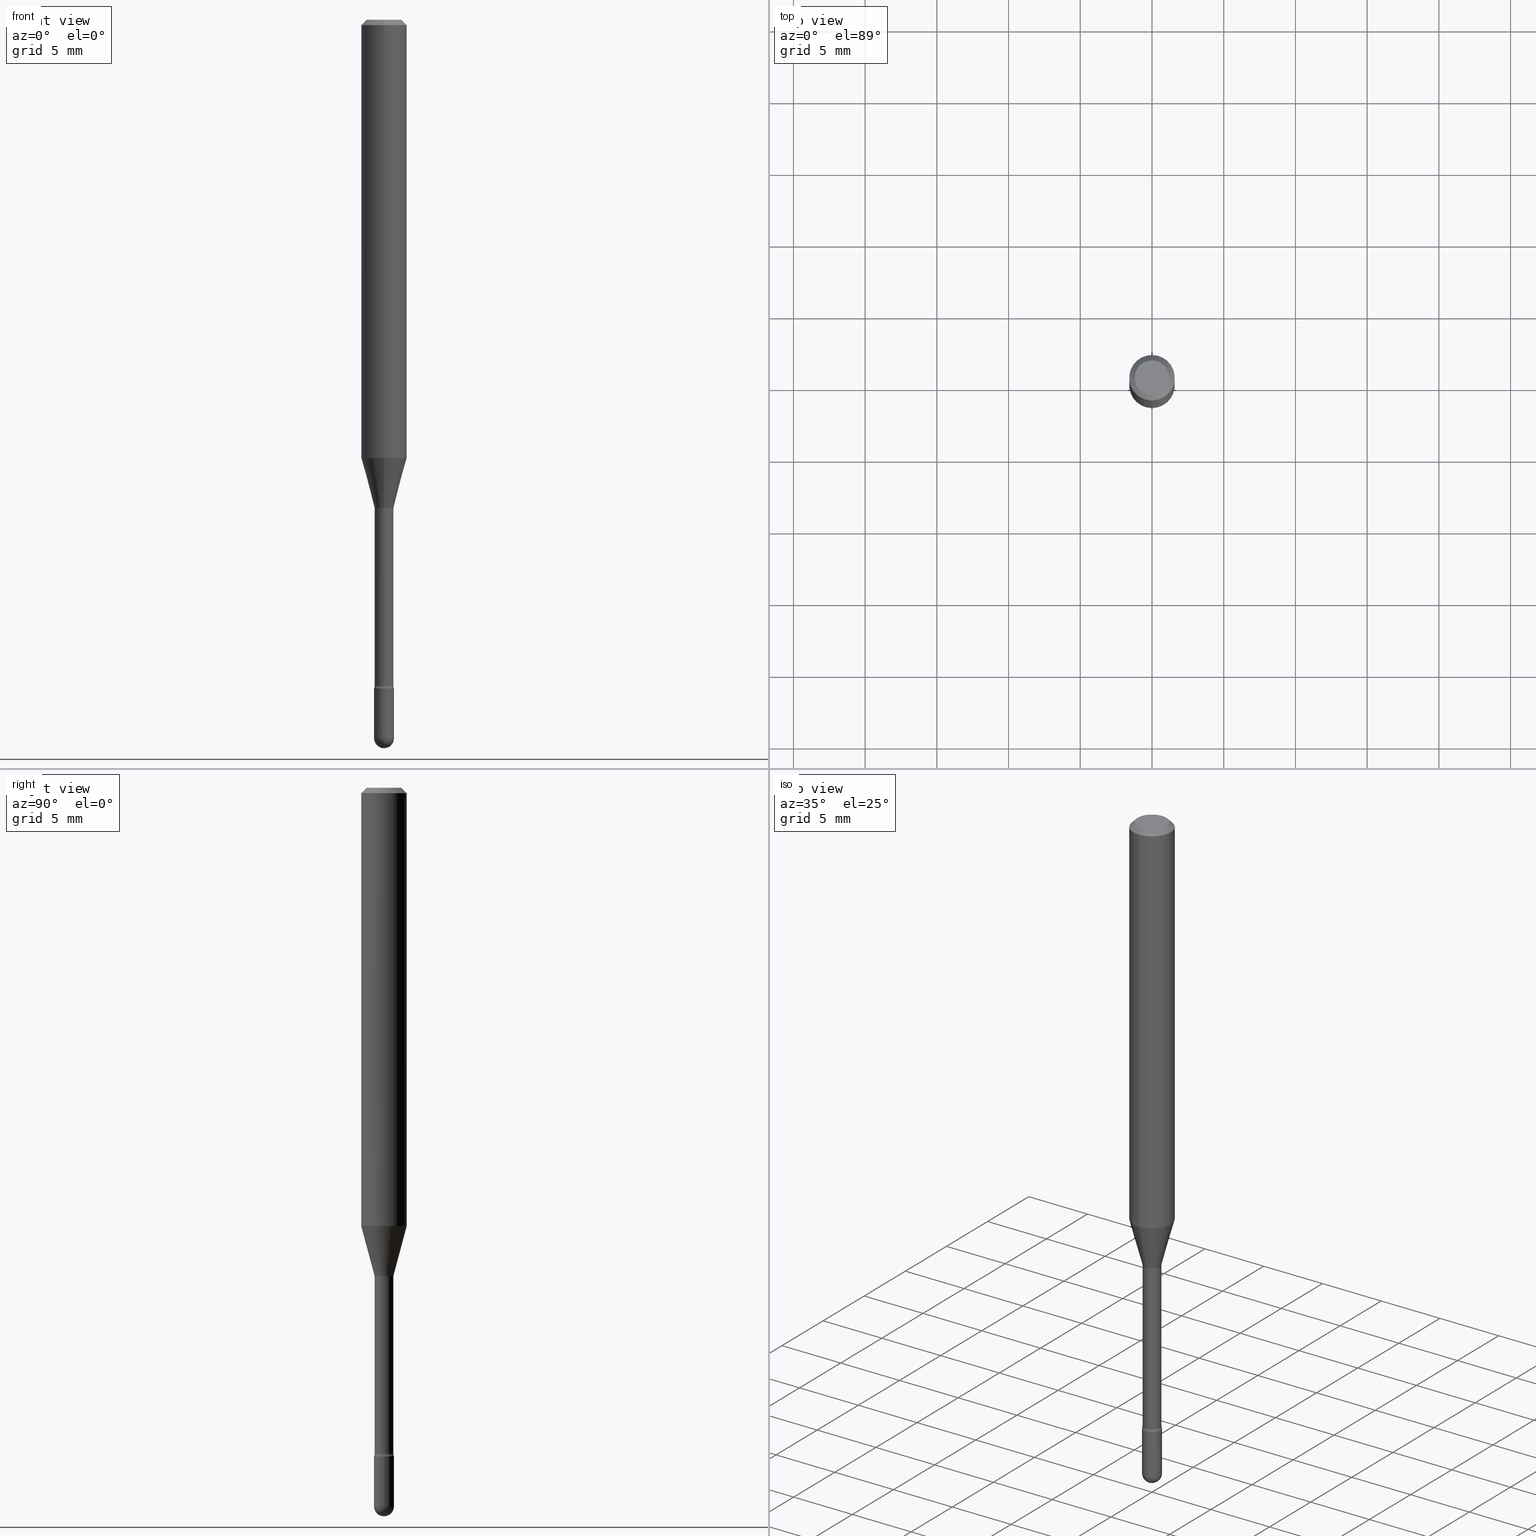
[diagram: canonical four-view strip — front | top / right | iso, engineering-drawing reading convention]
A machine part, canonical four-view strip (front | top / right | iso — engineering-drawing reading convention). The complete STEP part file that produces these views, byte-faithful:
ISO-10303-21;
HEADER;
FILE_DESCRIPTION (( 'STEP AP203' ),
    '1' );
FILE_NAME ('01622.STEP',
    '2024-04-09T20:10:21',
    ( '' ),
    ( '' ),
    'SwSTEP 2.0',
    'SolidWorks 2023',
    '' );
FILE_SCHEMA (( 'CONFIG_CONTROL_DESIGN' ));
ENDSEC;

DATA;
#1 = DIRECTION ( 'NONE',  ( -7.105427357601001070E-15, -1.000000000000000000, 0.000000000000000000 ) ) ;
#2 = AXIS2_PLACEMENT_3D ( 'NONE', #66, #29, #100 ) ;
#3 = AXIS2_PLACEMENT_3D ( 'NONE', #453, #230, #187 ) ;
#4 = SECURITY_CLASSIFICATION ( '', '', #273 ) ;
#5 = ORIENTED_EDGE ( 'NONE', *, *, #331, .T. ) ;
#6 = CARTESIAN_POINT ( 'NONE',  ( 3.281700167641022565E-29, -4.685562004235343704E-15, -1.341974787463811047 ) ) ;
#7 = VERTEX_POINT ( 'NONE', #69 ) ;
#8 = DIRECTION ( 'NONE',  ( -1.000000000000000000, 6.982962677686265922E-15, -4.883557194083112901E-29 ) ) ;
#9 = CARTESIAN_POINT ( 'NONE',  ( 0.000000000000000000, 0.000000000000000000, 0.000000000000000000 ) ) ;
#10 = FACE_OUTER_BOUND ( 'NONE', #328, .T. ) ;
#11 = DIRECTION ( 'NONE',  ( -2.445468806185136597E-29, 3.491481338843145583E-15, 1.000000000000000000 ) ) ;
#12 = AXIS2_PLACEMENT_3D ( 'NONE', #343, #539, #49 ) ;
#13 = FACE_OUTER_BOUND ( 'NONE', #530, .T. ) ;
#14 = CARTESIAN_POINT ( 'NONE',  ( -1.840786654676037546E-16, -0.02636111260566864622, -1.338092501787272903 ) ) ;
#15 = CARTESIAN_POINT ( 'NONE',  ( 0.000000000000000000, 0.000000000000000000, 0.000000000000000000 ) ) ;
#16 = CARTESIAN_POINT ( 'NONE',  ( 4.440892098500918040E-16, 0.06249999999999577421, -1.203220337902601189 ) ) ;
#17 = DIRECTION ( 'NONE',  ( 1.839019923739600315E-15, 0.2588190451025249583, 0.9659258262890670910 ) ) ;
#18 = ADVANCED_FACE ( 'NONE', ( #84 ), #437, .T. ) ;
#19 = CC_DESIGN_PERSON_AND_ORGANIZATION_ASSIGNMENT ( #317, #556, ( #4 ) ) ;
#20 = DIRECTION ( 'NONE',  ( -2.445468806185136597E-29, 3.491481338843145583E-15, 1.000000000000000000 ) ) ;
#21 = CARTESIAN_POINT ( 'NONE',  ( 2.023242295804794525E-45, -2.889338752406157076E-31, -8.274412692094914940E-17 ) ) ;
#22 = CARTESIAN_POINT ( 'NONE',  ( 3.272206324929117357E-29, -4.672006838798926672E-15, -1.338092501787272903 ) ) ;
#23 = PERSON_AND_ORGANIZATION ( #392, #327 ) ;
#24 = DIRECTION ( 'NONE',  ( -2.445426097641585314E-29, 3.491542499908330296E-15, 1.000000000000000000 ) ) ;
#25 = FACE_OUTER_BOUND ( 'NONE', #294, .T. ) ;
#26 = VERTEX_POINT ( 'NONE', #382 ) ;
#27 = CIRCLE ( 'NONE', #397, 0.02749999999999995504 ) ;
#28 = AXIS2_PLACEMENT_3D ( 'NONE', #161, #501, #63 ) ;
#29 = DIRECTION ( 'NONE',  ( -2.445426097641585314E-29, 3.491542499908330296E-15, 1.000000000000000000 ) ) ;
#30 = DATE_TIME_ROLE ( 'creation_date' ) ;
#31 = ADVANCED_FACE ( 'NONE', ( #299 ), #483, .T. ) ;
#32 = APPROVAL_STATUS ( 'not_yet_approved' ) ;
#33 = DIRECTION ( 'NONE',  ( -2.445426097641585314E-29, 3.491542499908330296E-15, 1.000000000000000000 ) ) ;
#34 = COORDINATED_UNIVERSAL_TIME_OFFSET ( 5, 0, .BEHIND. ) ;
#35 = VERTEX_POINT ( 'NONE', #227 ) ;
#36 = AXIS2_PLACEMENT_3D ( 'NONE', #125, #379, #288 ) ;
#37 = AXIS2_PLACEMENT_3D ( 'NONE', #527, #218, #216 ) ;
#38 = FACE_OUTER_BOUND ( 'NONE', #431, .T. ) ;
#39 = CC_DESIGN_DATE_AND_TIME_ASSIGNMENT ( #278, #30, ( #418 ) ) ;
#40 = CARTESIAN_POINT ( 'NONE',  ( 4.364351673553919652E-16, 0.06249999999999995143, -0.01500000000000030129 ) ) ;
#41 = DIRECTION ( 'NONE',  ( -2.445426097641585595E-29, 3.491542499908329902E-15, 1.000000000000000000 ) ) ;
#42 = ORIENTED_EDGE ( 'NONE', *, *, #219, .T. ) ;
#43 = CONICAL_SURFACE ( 'NONE', #482, 0.02636111260566397288, 0.2617993877991502960 ) ;
#44 = ORIENTED_EDGE ( 'NONE', *, *, #523, .F. ) ;
#45 = VERTEX_POINT ( 'NONE', #402 ) ;
#46 = VERTEX_POINT ( 'NONE', #16 ) ;
#47 = EDGE_LOOP ( 'NONE', ( #550, #430, #381, #425 ) ) ;
#48 = ORIENTED_EDGE ( 'NONE', *, *, #52, .F. ) ;
#49 = DIRECTION ( 'NONE',  ( -6.982962677686265922E-15, -1.000000000000000000, 4.370956789862821150E-15 ) ) ;
#50 = CIRCLE ( 'NONE', #420, 0.01499999999999996822 ) ;
#51 =( GEOMETRIC_REPRESENTATION_CONTEXT ( 3 ) GLOBAL_UNCERTAINTY_ASSIGNED_CONTEXT ( ( #115 ) ) GLOBAL_UNIT_ASSIGNED_CONTEXT ( ( #532, #145, #449 ) ) REPRESENTATION_CONTEXT ( 'NONE', 'WORKASPACE' ) );
#52 = EDGE_CURVE ( 'NONE', #215, #85, #513, .T. ) ;
#53 = FACE_OUTER_BOUND ( 'NONE', #346, .T. ) ;
#54 = DIRECTION ( 'NONE',  ( -2.445426097641585314E-29, 3.491542499908330296E-15, 1.000000000000000000 ) ) ;
#55 = ORIENTED_EDGE ( 'NONE', *, *, #94, .T. ) ;
#56 = DIRECTION ( 'NONE',  ( -6.982962677686265922E-15, -1.000000000000000000, 0.000000000000000000 ) ) ;
#57 = ADVANCED_FACE ( 'NONE', ( #315 ), #552, .F. ) ;
#58 = CIRCLE ( 'NONE', #371, 0.02750000000000000014 ) ;
#59 = EDGE_CURVE ( 'NONE', #7, #400, #143, .T. ) ;
#60 = DIRECTION ( 'NONE',  ( -2.445426097641585314E-29, 3.491542499908330296E-15, 1.000000000000000000 ) ) ;
#61 = DIRECTION ( 'NONE',  ( 6.982962677686265922E-15, 1.000000000000000000, 0.000000000000000000 ) ) ;
#62 = CARTESIAN_POINT ( 'NONE',  ( -4.364351673553623336E-16, -0.06250000000000421885, -1.203220337902600745 ) ) ;
#63 = DIRECTION ( 'NONE',  ( 1.000000000000000000, 0.000000000000000000, 0.000000000000000000 ) ) ;
#64 = LINE ( 'NONE', #205, #95 ) ;
#65 = ORIENTED_EDGE ( 'NONE', *, *, #331, .F. ) ;
#66 = CARTESIAN_POINT ( 'NONE',  ( 3.272206324929117357E-29, -4.672006838798926672E-15, -1.338092501787272903 ) ) ;
#67 = ORIENTED_EDGE ( 'NONE', *, *, #373, .F. ) ;
#68 = PERSON_AND_ORGANIZATION ( #392, #327 ) ;
#69 = CARTESIAN_POINT ( 'NONE',  ( -4.364351673553912750E-16, -0.06250000000000005551, -0.01499999999999986587 ) ) ;
#70 = AXIS2_PLACEMENT_3D ( 'NONE', #479, #92, #150 ) ;
#71 = ADVANCED_BREP_SHAPE_REPRESENTATION ( '01622', ( #146, #139, #28 ), #51 ) ;
#72 = APPLICATION_CONTEXT ( 'configuration controlled 3d designs of mechanical parts and assemblies' ) ;
#73 = CALENDAR_DATE ( 2024, 9, 4 ) ;
#74 = CARTESIAN_POINT ( 'NONE',  ( 4.487356889172309178E-29, -6.406980487331785808E-15, -1.834999999999999964 ) ) ;
#75 = APPLICATION_PROTOCOL_DEFINITION ( 'international standard', 'config_control_design', 1994, #72 ) ;
#76 = ORIENTED_EDGE ( 'NONE', *, *, #320, .F. ) ;
#77 = CALENDAR_DATE ( 2024, 9, 4 ) ;
#78 = DIRECTION ( 'NONE',  ( 4.937700262164548042E-15, 0.7071067811865451302, -0.7071067811865499042 ) ) ;
#79 = ORIENTED_EDGE ( 'NONE', *, *, #509, .F. ) ;
#80 = EDGE_CURVE ( 'NONE', #217, #469, #207, .T. ) ;
#81 = EDGE_CURVE ( 'NONE', #558, #35, #492, .T. ) ;
#82 = AXIS2_PLACEMENT_3D ( 'NONE', #83, #168, #559 ) ;
#83 = CARTESIAN_POINT ( 'NONE',  ( 4.823687220200181444E-29, -6.886946940868103736E-15, -1.972499999999999698 ) ) ;
#84 = FACE_OUTER_BOUND ( 'NONE', #476, .T. ) ;
#85 = VERTEX_POINT ( 'NONE', #405 ) ;
#86 = ORIENTED_EDGE ( 'NONE', *, *, #373, .T. ) ;
#87 = CIRCLE ( 'NONE', #473, 0.02750000000000000014 ) ;
#88 = CARTESIAN_POINT ( 'NONE',  ( -0.02750000000000000014, -6.451508346488609804E-15, -1.972499999999999698 ) ) ;
#89 = VERTEX_POINT ( 'NONE', #108 ) ;
#90 = ORIENTED_EDGE ( 'NONE', *, *, #475, .F. ) ;
#91 = PLANE ( 'NONE',  #171 ) ;
#92 = DIRECTION ( 'NONE',  ( -1.000000000000000000, 6.982962677686265922E-15, -4.883557194083112340E-29 ) ) ;
#93 = EDGE_LOOP ( 'NONE', ( #564, #428, #109, #276 ) ) ;
#94 = EDGE_CURVE ( 'NONE', #469, #217, #554, .T. ) ;
#95 = VECTOR ( 'NONE', #515, 39.37007874015748143 ) ;
#96 = LOCAL_TIME ( 16, 10, 21.00000000000000000, #111 ) ;
#97 = FACE_OUTER_BOUND ( 'NONE', #285, .T. ) ;
#98 = CARTESIAN_POINT ( 'NONE',  ( 0.02750000000000000014, -6.598899730413544603E-15, -1.834999999999999964 ) ) ;
#99 = ORIENTED_EDGE ( 'NONE', *, *, #308, .F. ) ;
#100 = DIRECTION ( 'NONE',  ( -6.982962677686265922E-15, -1.000000000000000000, 0.000000000000000000 ) ) ;
#101 = ADVANCED_FACE ( 'NONE', ( #239 ), #340, .F. ) ;
#102 = CC_DESIGN_DATE_AND_TIME_ASSIGNMENT ( #280, #459, ( #4 ) ) ;
#103 = FACE_OUTER_BOUND ( 'NONE', #460, .T. ) ;
#104 = CARTESIAN_POINT ( 'NONE',  ( -4.364351673553916201E-16, -0.06250000000000000000, 6.962948051355166821E-16 ) ) ;
#105 = AXIS2_PLACEMENT_3D ( 'NONE', #451, #231, #228 ) ;
#106 = DIRECTION ( 'NONE',  ( 7.105427357601001859E-15, 1.000000000000000000, 0.000000000000000000 ) ) ;
#107 = PERSON_AND_ORGANIZATION_ROLE ( 'creator' ) ;
#108 = CARTESIAN_POINT ( 'NONE',  ( -0.02750000000000000014, -6.451508346488609804E-15, -1.834999999999999964 ) ) ;
#109 = ORIENTED_EDGE ( 'NONE', *, *, #59, .F. ) ;
#110 = DIRECTION ( 'NONE',  ( -6.982962677686265922E-15, -1.000000000000000000, 3.491542499908330296E-15 ) ) ;
#111 = COORDINATED_UNIVERSAL_TIME_OFFSET ( 5, 0, .BEHIND. ) ;
#112 = ORIENTED_EDGE ( 'NONE', *, *, #521, .T. ) ;
#113 = CALENDAR_DATE ( 2024, 9, 4 ) ;
#114 = CARTESIAN_POINT ( 'NONE',  ( 4.470709700753047924E-29, -6.382988591833449480E-15, -1.828160592130893436 ) ) ;
#115 = UNCERTAINTY_MEASURE_WITH_UNIT (LENGTH_MEASURE( 1.000000000000000082E-05 ), #532, 'distance_accuracy_value', 'NONE');
#116 = VECTOR ( 'NONE', #198, 39.37007874015748143 ) ;
#117 = CIRCLE ( 'NONE', #440, 0.02750000000000000014 ) ;
#118 = PERSON_AND_ORGANIZATION_ROLE ( 'design_owner' ) ;
#119 = CARTESIAN_POINT ( 'NONE',  ( 3.668139146462398203E-31, -5.237313749862524657E-17, -0.01500000000000008271 ) ) ;
#120 = EDGE_LOOP ( 'NONE', ( #330, #90, #344, #173 ) ) ;
#121 = ADVANCED_FACE ( 'NONE', ( #414 ), #43, .T. ) ;
#122 = EDGE_CURVE ( 'NONE', #251, #89, #448, .T. ) ;
#123 = ORIENTED_EDGE ( 'NONE', *, *, #81, .F. ) ;
#124 = CARTESIAN_POINT ( 'NONE',  ( 0.02750000000000000014, -6.838939072459010416E-15, -1.972499999999999698 ) ) ;
#125 = CARTESIAN_POINT ( 'NONE',  ( 3.668139146462398203E-31, -5.237313749862524657E-17, -0.01500000000000008271 ) ) ;
#126 = AXIS2_PLACEMENT_3D ( 'NONE', #260, #443, #220 ) ;
#127 = VECTOR ( 'NONE', #200, 39.37007874015748143 ) ;
#128 = LOCAL_TIME ( 16, 10, 21.00000000000000000, #162 ) ;
#129 = PRODUCT_RELATED_PRODUCT_CATEGORY ( 'detail', '', ( #377 ) ) ;
#130 = ORIENTED_EDGE ( 'NONE', *, *, #433, .F. ) ;
#131 = DIRECTION ( 'NONE',  ( -2.445426097641585314E-29, 3.491542499908330296E-15, 1.000000000000000000 ) ) ;
#132 = CARTESIAN_POINT ( 'NONE',  ( -1.840786654676037546E-16, -0.02636111260566864622, -1.338092501787272903 ) ) ;
#133 = AXIS2_PLACEMENT_3D ( 'NONE', #547, #155, #1 ) ;
#134 = ORIENTED_EDGE ( 'NONE', *, *, #433, .T. ) ;
#135 = VERTEX_POINT ( 'NONE', #457 ) ;
#136 = DIRECTION ( 'NONE',  ( 1.000000000000000000, -6.982962677686279332E-15, 0.000000000000000000 ) ) ;
#137 = VERTEX_POINT ( 'NONE', #62 ) ;
#138 = EDGE_CURVE ( 'NONE', #456, #26, #533, .T. ) ;
#139 = MANIFOLD_SOLID_BREP ( 'Body-Move/Copy2[2]', #383 ) ;
#140 = DIRECTION ( 'NONE',  ( -2.445468806185136597E-29, 3.491481338843145583E-15, 1.000000000000000000 ) ) ;
#141 = ORIENTED_EDGE ( 'NONE', *, *, #80, .F. ) ;
#142 = DIRECTION ( 'NONE',  ( -2.445426097641585314E-29, 3.491542499908330296E-15, 1.000000000000000000 ) ) ;
#143 = CIRCLE ( 'NONE', #462, 0.06250000000000000000 ) ;
#144 = VECTOR ( 'NONE', #309, 39.37007874015748143 ) ;
#145 =( NAMED_UNIT ( * ) PLANE_ANGLE_UNIT ( ) SI_UNIT ( $, .RADIAN. ) );
#146 = MANIFOLD_SOLID_BREP ( 'Body-Move/Copy2[1]', #358 ) ;
#147 = ADVANCED_FACE ( 'NONE', ( #367 ), #348, .F. ) ;
#148 = CARTESIAN_POINT ( 'NONE',  ( 4.823687220200181444E-29, -6.886946940868103736E-15, -1.972499999999999698 ) ) ;
#149 = CARTESIAN_POINT ( 'NONE',  ( 3.281757481429677785E-29, -4.685479927627891882E-15, -1.341974787463811047 ) ) ;
#150 = DIRECTION ( 'NONE',  ( -6.982962677686266711E-15, -1.000000000000000000, 0.000000000000000000 ) ) ;
#151 = CARTESIAN_POINT ( 'NONE',  ( 1.836752971940308241E-16, 0.02584999999999531423, -1.341974787463811047 ) ) ;
#152 = PERSON_AND_ORGANIZATION_ROLE ( 'creator' ) ;
#153 = AXIS2_PLACEMENT_3D ( 'NONE', #287, #535, #538 ) ;
#154 = APPROVAL_PERSON_ORGANIZATION ( #202, #500, #548 ) ;
#155 = DIRECTION ( 'NONE',  ( -1.000000000000000000, 7.105427357601001070E-15, -4.926315508542082329E-29 ) ) ;
#156 = APPROVAL_DATE_TIME ( #370, #500 ) ;
#157 = CARTESIAN_POINT ( 'NONE',  ( -4.287811248607203282E-16, -0.06250000000000005551, -0.01499999999999986587 ) ) ;
#158 = ADVANCED_FACE ( 'NONE', ( #103 ), #490, .T. ) ;
#159 = ORIENTED_EDGE ( 'NONE', *, *, #232, .T. ) ;
#160 = CARTESIAN_POINT ( 'NONE',  ( 2.902567075580337440E-16, 0.04084999999999532061, -1.341974787463811269 ) ) ;
#161 = CARTESIAN_POINT ( 'NONE',  ( 0.000000000000000000, 0.000000000000000000, 0.000000000000000000 ) ) ;
#162 = COORDINATED_UNIVERSAL_TIME_OFFSET ( 5, 0, .BEHIND. ) ;
#163 = DESIGN_CONTEXT ( 'detailed design', #72, 'design' ) ;
#164 = ORIENTED_EDGE ( 'NONE', *, *, #122, .F. ) ;
#165 = CIRCLE ( 'NONE', #70, 0.01499999999999996822 ) ;
#166 = ADVANCED_FACE ( 'NONE', ( #13 ), #410, .T. ) ;
#167 = APPROVAL ( #465, 'UNSPECIFIED' ) ;
#168 = DIRECTION ( 'NONE',  ( -2.445468806185136597E-29, 3.491481338843145583E-15, 1.000000000000000000 ) ) ;
#169 = LINE ( 'NONE', #40, #236 ) ;
#170 = AXIS2_PLACEMENT_3D ( 'NONE', #21, #549, #506 ) ;
#171 = AXIS2_PLACEMENT_3D ( 'NONE', #350, #172, #221 ) ;
#172 = DIRECTION ( 'NONE',  ( 2.445426097641585314E-29, -3.491542499908329902E-15, -1.000000000000000000 ) ) ;
#173 = ORIENTED_EDGE ( 'NONE', *, *, #81, .T. ) ;
#174 = AXIS2_PLACEMENT_3D ( 'NONE', #160, #185, #263 ) ;
#175 = ADVANCED_FACE ( 'NONE', ( #223 ), #281, .F. ) ;
#176 = ADVANCED_FACE ( 'NONE', ( #551 ), #546, .T. ) ;
#177 = ORIENTED_EDGE ( 'NONE', *, *, #212, .F. ) ;
#178 = DIRECTION ( 'NONE',  ( -2.445426097641585314E-29, 3.491542499908330296E-15, 1.000000000000000000 ) ) ;
#179 = EDGE_LOOP ( 'NONE', ( #297, #525, #432, #279, #86 ) ) ;
#180 = CYLINDRICAL_SURFACE ( 'NONE', #351, 0.02750000000000000014 ) ;
#181 = DIRECTION ( 'NONE',  ( -2.445468806185136877E-29, 3.491481338843145188E-15, 1.000000000000000000 ) ) ;
#182 = VECTOR ( 'NONE', #17, 39.37007874015748143 ) ;
#183 = DIRECTION ( 'NONE',  ( 1.000000000000000000, -6.982962677686279332E-15, 0.000000000000000000 ) ) ;
#184 = CARTESIAN_POINT ( 'NONE',  ( 3.281700167641022565E-29, -4.685562004235343704E-15, -1.341974787463811047 ) ) ;
#185 = DIRECTION ( 'NONE',  ( 1.000000000000000000, -7.105427357601001070E-15, 4.926316257549109395E-29 ) ) ;
#186 = DATE_AND_TIME ( #113, #441 ) ;
#187 = DIRECTION ( 'NONE',  ( -6.982962677686265133E-15, -1.000000000000000000, 3.491542499908331479E-15 ) ) ;
#188 = ORIENTED_EDGE ( 'NONE', *, *, #353, .F. ) ;
#189 = DIRECTION ( 'NONE',  ( -2.445426097641585314E-29, 3.491542499908330296E-15, 1.000000000000000000 ) ) ;
#190 = EDGE_CURVE ( 'NONE', #26, #46, #237, .T. ) ;
#191 = CIRCLE ( 'NONE', #313, 0.01500000000000003587 ) ;
#192 = DIRECTION ( 'NONE',  ( -2.445426097641585314E-29, 3.491542499908330296E-15, 1.000000000000000000 ) ) ;
#193 = CC_DESIGN_SECURITY_CLASSIFICATION ( #4, ( #536 ) ) ;
#194 = AXIS2_PLACEMENT_3D ( 'NONE', #148, #140, #298 ) ;
#195 = DIRECTION ( 'NONE',  ( 6.982962677686265922E-15, 1.000000000000000000, 0.000000000000000000 ) ) ;
#196 = EDGE_LOOP ( 'NONE', ( #324, #292, #67, #79 ) ) ;
#197 = COORDINATED_UNIVERSAL_TIME_OFFSET ( 5, 0, .BEHIND. ) ;
#198 = DIRECTION ( 'NONE',  ( -2.445468806185136877E-29, 3.491481338843145188E-15, 1.000000000000000000 ) ) ;
#199 = DIRECTION ( 'NONE',  ( -6.982962677686265922E-15, -1.000000000000000000, 0.000000000000000000 ) ) ;
#200 = DIRECTION ( 'NONE',  ( -4.851104656540964275E-15, -0.7071067811865500152, -0.7071067811865450192 ) ) ;
#201 = EDGE_CURVE ( 'NONE', #26, #215, #412, .T. ) ;
#202 = PERSON_AND_ORGANIZATION ( #392, #327 ) ;
#203 = DIRECTION ( 'NONE',  ( -2.445426097641585314E-29, 3.491542499908329902E-15, 1.000000000000000000 ) ) ;
#204 = CIRCLE ( 'NONE', #133, 0.02749999999999995504 ) ;
#205 = CARTESIAN_POINT ( 'NONE',  ( 1.836752971939861795E-16, 0.02585000000000004308, 3.878170252686155711E-16 ) ) ;
#206 = EDGE_CURVE ( 'NONE', #45, #135, #289, .T. ) ;
#207 = CIRCLE ( 'NONE', #224, 0.04749999999999999362 ) ;
#208 = ORIENTED_EDGE ( 'NONE', *, *, #201, .T. ) ;
#209 = AXIS2_PLACEMENT_3D ( 'NONE', #319, #504, #56 ) ;
#210 = ORIENTED_EDGE ( 'NONE', *, *, #543, .T. ) ;
#211 = PRODUCT_DEFINITION_SHAPE ( 'NONE', 'NONE',  #418 ) ;
#212 = EDGE_CURVE ( 'NONE', #35, #558, #117, .T. ) ;
#213 = APPROVAL ( #241, 'UNSPECIFIED' ) ;
#214 = ORIENTED_EDGE ( 'NONE', *, *, #467, .F. ) ;
#215 = VERTEX_POINT ( 'NONE', #151 ) ;
#216 = DIRECTION ( 'NONE',  ( -6.982962677686265922E-15, -1.000000000000000000, 0.000000000000000000 ) ) ;
#217 = VERTEX_POINT ( 'NONE', #312 ) ;
#218 = DIRECTION ( 'NONE',  ( -2.445426097641585314E-29, 3.491542499908330296E-15, 1.000000000000000000 ) ) ;
#219 = EDGE_CURVE ( 'NONE', #45, #35, #50, .T. ) ;
#220 = DIRECTION ( 'NONE',  ( 6.982962677686265922E-15, 1.000000000000000000, -3.483106191921935554E-15 ) ) ;
#221 = DIRECTION ( 'NONE',  ( 6.982962677686265922E-15, 1.000000000000000000, -3.491542499908329902E-15 ) ) ;
#222 = DIRECTION ( 'NONE',  ( -6.982962677686265922E-15, -1.000000000000000000, 3.491542499908329507E-15 ) ) ;
#223 = FACE_OUTER_BOUND ( 'NONE', #120, .T. ) ;
#224 = AXIS2_PLACEMENT_3D ( 'NONE', #416, #24, #269 ) ;
#225 = VECTOR ( 'NONE', #261, 39.37007874015748143 ) ;
#226 = DIRECTION ( 'NONE',  ( -6.982962677686266711E-15, -1.000000000000000000, 0.000000000000000000 ) ) ;
#227 = CARTESIAN_POINT ( 'NONE',  ( 1.953992523340722953E-16, 0.02749999999999357125, -1.834999999999999964 ) ) ;
#228 = DIRECTION ( 'NONE',  ( -6.982962677686265922E-15, -1.000000000000000000, 0.000000000000000000 ) ) ;
#229 = CYLINDRICAL_SURFACE ( 'NONE', #293, 0.06250000000000000000 ) ;
#230 = DIRECTION ( 'NONE',  ( -2.445426097641585314E-29, 3.491542499908330296E-15, 1.000000000000000000 ) ) ;
#231 = DIRECTION ( 'NONE',  ( -2.445426097641585314E-29, 3.491542499908330296E-15, 1.000000000000000000 ) ) ;
#232 = EDGE_CURVE ( 'NONE', #26, #456, #342, .T. ) ;
#233 = CARTESIAN_POINT ( 'NONE',  ( 4.823687220200182004E-29, -6.886946940868104525E-15, -1.972500000000000142 ) ) ;
#234 = DATE_AND_TIME ( #73, #427 ) ;
#235 = AXIS2_PLACEMENT_3D ( 'NONE', #114, #283, #466 ) ;
#236 = VECTOR ( 'NONE', #78, 39.37007874015748143 ) ;
#237 = LINE ( 'NONE', #403, #182 ) ;
#238 = SHAPE_DEFINITION_REPRESENTATION ( #211, #71 ) ;
#239 = FACE_OUTER_BOUND ( 'NONE', #545, .T. ) ;
#240 = LINE ( 'NONE', #157, #127 ) ;
#241 = APPROVAL_STATUS ( 'not_yet_approved' ) ;
#242 = PERSON_AND_ORGANIZATION ( #392, #327 ) ;
#243 = CARTESIAN_POINT ( 'NONE',  ( 1.920314736364203663E-16, 0.02749999999999308900, -1.972499999999999698 ) ) ;
#244 = VECTOR ( 'NONE', #181, 39.37007874015748143 ) ;
#245 = EDGE_CURVE ( 'NONE', #528, #447, #204, .T. ) ;
#246 = EDGE_CURVE ( 'NONE', #528, #389, #27, .T. ) ;
#247 = AXIS2_PLACEMENT_3D ( 'NONE', #277, #60, #266 ) ;
#248 = ORIENTED_EDGE ( 'NONE', *, *, #509, .T. ) ;
#249 = CIRCLE ( 'NONE', #282, 0.06250000000000000000 ) ;
#250 = ADVANCED_FACE ( 'NONE', ( #53 ), #384, .F. ) ;
#251 = VERTEX_POINT ( 'NONE', #88 ) ;
#252 = EDGE_LOOP ( 'NONE', ( #512, #159, #363, #318 ) ) ;
#253 = DIRECTION ( 'NONE',  ( -6.982962677686265922E-15, -1.000000000000000000, 3.483106191921935554E-15 ) ) ;
#254 = ORIENTED_EDGE ( 'NONE', *, *, #201, .F. ) ;
#255 = CARTESIAN_POINT ( 'NONE',  ( 0.02750000000000000014, -1.920314736363723444E-16, 1.340948613343882413E-30 ) ) ;
#256 = CARTESIAN_POINT ( 'NONE',  ( -3.773273898774340269E-16, -0.04749999999999999362, 8.310414182469653720E-17 ) ) ;
#257 = ORIENTED_EDGE ( 'NONE', *, *, #484, .T. ) ;
#258 = VECTOR ( 'NONE', #434, 39.37007874015748143 ) ;
#259 =( LENGTH_UNIT ( ) NAMED_UNIT ( * ) SI_UNIT ( $, .METRE. ) );
#260 = CARTESIAN_POINT ( 'NONE',  ( 3.668139146462398203E-31, -5.237313749862524657E-17, -0.01500000000000008271 ) ) ;
#261 = DIRECTION ( 'NONE',  ( -2.445426097641585595E-29, 3.491542499908329902E-15, 1.000000000000000000 ) ) ;
#262 = CARTESIAN_POINT ( 'NONE',  ( 4.823687220200181444E-29, -6.886946940868103736E-15, -1.972499999999999698 ) ) ;
#263 = DIRECTION ( 'NONE',  ( 7.105427357601001859E-15, 1.000000000000000000, 0.000000000000000000 ) ) ;
#264 = FACE_OUTER_BOUND ( 'NONE', #179, .T. ) ;
#265 = DIRECTION ( 'NONE',  ( 1.000000000000000000, -6.982962677686266711E-15, 4.876176775795935793E-29 ) ) ;
#266 = DIRECTION ( 'NONE',  ( -6.982962677686265922E-15, -1.000000000000000000, 3.491542499908329507E-15 ) ) ;
#267 = AXIS2_PLACEMENT_3D ( 'NONE', #6, #178, #226 ) ;
#268 = CARTESIAN_POINT ( 'NONE',  ( 4.487435259349726059E-29, -6.406868256777172111E-15, -1.834999999999999964 ) ) ;
#269 = DIRECTION ( 'NONE',  ( -6.982962677686266711E-15, -1.000000000000000000, 3.491542499908330296E-15 ) ) ;
#270 = DIRECTION ( 'NONE',  ( -6.982962677686265922E-15, -1.000000000000000000, 4.370956789862821150E-15 ) ) ;
#271 = ADVANCED_FACE ( 'NONE', ( #10 ), #478, .T. ) ;
#272 = DIRECTION ( 'NONE',  ( -2.445426097641585314E-29, 3.491542499908330296E-15, 1.000000000000000000 ) ) ;
#273 = SECURITY_CLASSIFICATION_LEVEL ( 'unclassified' ) ;
#274 = DIRECTION ( 'NONE',  ( -6.982962677686266711E-15, -1.000000000000000000, 0.000000000000000000 ) ) ;
#275 = DIRECTION ( 'NONE',  ( -6.982962677686268288E-15, -1.000000000000000000, 0.000000000000000000 ) ) ;
#276 = ORIENTED_EDGE ( 'NONE', *, *, #477, .F. ) ;
#277 = CARTESIAN_POINT ( 'NONE',  ( -1.169113584055446105E-44, 1.669184350826100908E-30, 4.780733988912460139E-16 ) ) ;
#278 = DATE_AND_TIME ( #542, #334 ) ;
#279 = ORIENTED_EDGE ( 'NONE', *, *, #301, .F. ) ;
#280 = DATE_AND_TIME ( #322, #96 ) ;
#281 = TOROIDAL_SURFACE ( 'NONE', #508, 0.04085000000000005987, 0.01499999999999996995 ) ;
#282 = AXIS2_PLACEMENT_3D ( 'NONE', #369, #540, #270 ) ;
#283 = DIRECTION ( 'NONE',  ( -2.445426097641585314E-29, 3.491542499908330296E-15, 1.000000000000000000 ) ) ;
#284 = DIRECTION ( 'NONE',  ( -6.982962677686265922E-15, -1.000000000000000000, 3.483106191921935554E-15 ) ) ;
#285 = EDGE_LOOP ( 'NONE', ( #470, #372, #474, #188 ) ) ;
#286 = VERTEX_POINT ( 'NONE', #98 ) ;
#287 = CARTESIAN_POINT ( 'NONE',  ( 4.487435259349726059E-29, -6.406868256777172111E-15, -1.834999999999999964 ) ) ;
#288 = DIRECTION ( 'NONE',  ( 6.982962677686265922E-15, 1.000000000000000000, -3.483106191921935554E-15 ) ) ;
#289 = CIRCLE ( 'NONE', #209, 0.02585000000000008819 ) ;
#290 = ADVANCED_FACE ( 'NONE', ( #429 ), #91, .F. ) ;
#291 = ORIENTED_EDGE ( 'NONE', *, *, #320, .T. ) ;
#292 = ORIENTED_EDGE ( 'NONE', *, *, #246, .T. ) ;
#293 = AXIS2_PLACEMENT_3D ( 'NONE', #481, #54, #222 ) ;
#294 = EDGE_LOOP ( 'NONE', ( #65, #295, #365, #48 ) ) ;
#295 = ORIENTED_EDGE ( 'NONE', *, *, #206, .T. ) ;
#296 = DIRECTION ( 'NONE',  ( 1.000000000000000000, -6.982962677686279332E-15, 0.000000000000000000 ) ) ;
#297 = ORIENTED_EDGE ( 'NONE', *, *, #561, .T. ) ;
#298 = DIRECTION ( 'NONE',  ( 1.000000000000000000, -6.982962677686279332E-15, 0.000000000000000000 ) ) ;
#299 = FACE_OUTER_BOUND ( 'NONE', #409, .T. ) ;
#300 = EDGE_LOOP ( 'NONE', ( #123, #177 ) ) ;
#301 = EDGE_CURVE ( 'NONE', #338, #286, #444, .T. ) ;
#302 = AXIS2_PLACEMENT_3D ( 'NONE', #233, #316, #195 ) ;
#303 = VECTOR ( 'NONE', #41, 39.37007874015748143 ) ;
#304 = DIRECTION ( 'NONE',  ( -6.982962677686265922E-15, -1.000000000000000000, 3.491542499908330296E-15 ) ) ;
#305 = DIRECTION ( 'NONE',  ( -6.982962677686265922E-15, -1.000000000000000000, 3.491542499908330296E-15 ) ) ;
#306 = DIRECTION ( 'NONE',  ( -2.445468806185136597E-29, 3.491481338843145583E-15, 1.000000000000000000 ) ) ;
#307 = EDGE_CURVE ( 'NONE', #456, #137, #339, .T. ) ;
#308 = EDGE_CURVE ( 'NONE', #469, #7, #240, .T. ) ;
#309 = DIRECTION ( 'NONE',  ( -2.445426097641585595E-29, 3.491542499908329902E-15, 1.000000000000000000 ) ) ;
#310 = EDGE_CURVE ( 'NONE', #46, #137, #249, .T. ) ;
#311 = ADVANCED_FACE ( 'NONE', ( #25 ), #497, .T. ) ;
#312 = CARTESIAN_POINT ( 'NONE',  ( 3.840629472727447874E-16, 0.04749999999999999362, -2.485923956665948360E-16 ) ) ;
#313 = AXIS2_PLACEMENT_3D ( 'NONE', #455, #356, #275 ) ;
#314 = PERSON_AND_ORGANIZATION ( #392, #327 ) ;
#315 = FACE_OUTER_BOUND ( 'NONE', #300, .T. ) ;
#316 = DIRECTION ( 'NONE',  ( -1.000000000000000000, 6.982962677686265922E-15, -4.883557194083112901E-29 ) ) ;
#317 = PERSON_AND_ORGANIZATION ( #392, #327 ) ;
#318 = ORIENTED_EDGE ( 'NONE', *, *, #310, .F. ) ;
#319 = CARTESIAN_POINT ( 'NONE',  ( 4.470631622676780781E-29, -6.383100404082593275E-15, -1.828160592130893436 ) ) ;
#320 = EDGE_CURVE ( 'NONE', #456, #85, #191, .T. ) ;
#321 = ORIENTED_EDGE ( 'NONE', *, *, #138, .F. ) ;
#322 = CALENDAR_DATE ( 2024, 9, 4 ) ;
#323 = DIRECTION ( 'NONE',  ( -6.982962677686265922E-15, -1.000000000000000000, 3.491542499908329902E-15 ) ) ;
#324 = ORIENTED_EDGE ( 'NONE', *, *, #245, .F. ) ;
#325 = APPROVAL_DATE_TIME ( #234, #167 ) ;
#326 = AXIS2_PLACEMENT_3D ( 'NONE', #452, #8, #61 ) ;
#327 = ORGANIZATION ( 'UNSPECIFIED', 'UNSPECIFIED', '' ) ;
#328 = EDGE_LOOP ( 'NONE', ( #499, #5, #380, #214 ) ) ;
#329 = CARTESIAN_POINT ( 'NONE',  ( 1.920314736364172109E-16, 0.02749999999999359554, -1.834999999999999964 ) ) ;
#330 = ORIENTED_EDGE ( 'NONE', *, *, #219, .F. ) ;
#331 = EDGE_CURVE ( 'NONE', #45, #215, #64, .T. ) ;
#332 = AXIS2_PLACEMENT_3D ( 'NONE', #9, #306, #265 ) ;
#333 = CIRCLE ( 'NONE', #82, 0.02750000000000000014 ) ;
#334 = LOCAL_TIME ( 16, 10, 21.00000000000000000, #34 ) ;
#335 = CARTESIAN_POINT ( 'NONE',  ( 4.440892098500625669E-16, 0.06250000000000000000, 2.598519926469753951E-16 ) ) ;
#336 = ORIENTED_EDGE ( 'NONE', *, *, #310, .T. ) ;
#337 = CARTESIAN_POINT ( 'NONE',  ( 3.668139146462398203E-31, -5.237313749862524657E-17, -0.01500000000000008271 ) ) ;
#338 = VERTEX_POINT ( 'NONE', #124 ) ;
#339 = LINE ( 'NONE', #132, #258 ) ;
#340 = TOROIDAL_SURFACE ( 'NONE', #235, 0.04085000000000005987, 0.01499999999999996995 ) ;
#341 = ORIENTED_EDGE ( 'NONE', *, *, #301, .T. ) ;
#342 = CIRCLE ( 'NONE', #534, 0.02636111260566397288 ) ;
#343 = CARTESIAN_POINT ( 'NONE',  ( 2.942386415520147036E-29, -4.201094946540992932E-15, -1.203220337902600967 ) ) ;
#344 = ORIENTED_EDGE ( 'NONE', *, *, #468, .T. ) ;
#345 = CARTESIAN_POINT ( 'NONE',  ( -1.920314736363273300E-16, -0.02750000000000639086, -1.834999999999999964 ) ) ;
#346 = EDGE_LOOP ( 'NONE', ( #566, #208, #376, #76 ) ) ;
#347 = DIRECTION ( 'NONE',  ( -2.445468806185136597E-29, 3.491481338843145583E-15, 1.000000000000000000 ) ) ;
#348 = TOROIDAL_SURFACE ( 'NONE', #562, 0.04085000000000000436, 0.01500000000000003587 ) ;
#349 = CIRCLE ( 'NONE', #555, 0.02750000000000000014 ) ;
#350 = CARTESIAN_POINT ( 'NONE',  ( 3.316907271900976096E-16, 0.04749999999999999362, 3.181636723950283194E-17 ) ) ;
#351 = AXIS2_PLACEMENT_3D ( 'NONE', #15, #347, #529 ) ;
#352 = ORIENTED_EDGE ( 'NONE', *, *, #206, .F. ) ;
#353 = EDGE_CURVE ( 'NONE', #217, #400, #169, .T. ) ;
#354 = CARTESIAN_POINT ( 'NONE',  ( 4.892113466017894923E-29, -6.981278788337462957E-15, -2.000000000000000000 ) ) ;
#355 = DIRECTION ( 'NONE',  ( -2.445426097641585314E-29, 3.491542499908330296E-15, 1.000000000000000000 ) ) ;
#356 = DIRECTION ( 'NONE',  ( -1.000000000000000000, 6.982962677686265922E-15, -4.883557194083112340E-29 ) ) ;
#357 = DIRECTION ( 'NONE',  ( -6.982962677686265922E-15, -1.000000000000000000, 0.000000000000000000 ) ) ;
#358 = CLOSED_SHELL ( 'NONE', ( #560, #158, #413, #498, #31 ) ) ;
#359 = ORIENTED_EDGE ( 'NONE', *, *, #521, .F. ) ;
#360 = AXIS2_PLACEMENT_3D ( 'NONE', #486, #471, #393 ) ;
#361 = COORDINATED_UNIVERSAL_TIME_OFFSET ( 5, 0, .BEHIND. ) ;
#362 = CC_DESIGN_APPROVAL ( #213, ( #418 ) ) ;
#363 = ORIENTED_EDGE ( 'NONE', *, *, #307, .T. ) ;
#364 = CARTESIAN_POINT ( 'NONE',  ( 4.470709700753047924E-29, -6.382988591833449480E-15, -1.828160592130893436 ) ) ;
#365 = ORIENTED_EDGE ( 'NONE', *, *, #467, .T. ) ;
#366 = APPROVAL_ROLE ( '' ) ;
#367 = FACE_OUTER_BOUND ( 'NONE', #394, .T. ) ;
#368 = MECHANICAL_CONTEXT ( 'NONE', #485, 'mechanical' ) ;
#369 = CARTESIAN_POINT ( 'NONE',  ( 2.942386415520147036E-29, -4.201094946540992932E-15, -1.203220337902600967 ) ) ;
#370 = DATE_AND_TIME ( #77, #128 ) ;
#371 = AXIS2_PLACEMENT_3D ( 'NONE', #388, #11, #183 ) ;
#372 = ORIENTED_EDGE ( 'NONE', *, *, #308, .T. ) ;
#373 = EDGE_CURVE ( 'NONE', #338, #389, #333, .T. ) ;
#374 = PLANE ( 'NONE',  #153 ) ;
#375 = CIRCLE ( 'NONE', #37, 0.02585000000000008819 ) ;
#376 = ORIENTED_EDGE ( 'NONE', *, *, #52, .T. ) ;
#377 = PRODUCT ( '01622', '01622', '', ( #368 ) ) ;
#378 = CARTESIAN_POINT ( 'NONE',  ( 4.823687220200182004E-29, -6.886946940868104525E-15, -1.972500000000000142 ) ) ;
#379 = DIRECTION ( 'NONE',  ( 2.445426097641585314E-29, -3.491542499908330296E-15, -1.000000000000000000 ) ) ;
#380 = ORIENTED_EDGE ( 'NONE', *, *, #543, .F. ) ;
#381 = ORIENTED_EDGE ( 'NONE', *, *, #517, .F. ) ;
#382 = CARTESIAN_POINT ( 'NONE',  ( 3.156980902676051676E-16, 0.02636111260565929953, -1.338092501787272903 ) ) ;
#383 = CLOSED_SHELL ( 'NONE', ( #250, #271, #101, #417, #487, #121, #176, #166, #18, #290, #57, #175, #311, #147 ) ) ;
#384 = TOROIDAL_SURFACE ( 'NONE', #493, 0.04085000000000000436, 0.01500000000000003587 ) ;
#385 = CIRCLE ( 'NONE', #194, 0.02750000000000000014 ) ;
#386 = DIRECTION ( 'NONE',  ( 6.982962677686265922E-15, 1.000000000000000000, 0.000000000000000000 ) ) ;
#387 = ORIENTED_EDGE ( 'NONE', *, *, #523, .T. ) ;
#388 = CARTESIAN_POINT ( 'NONE',  ( 4.487435259349726059E-29, -6.406868256777172111E-15, -1.834999999999999964 ) ) ;
#389 = VERTEX_POINT ( 'NONE', #243 ) ;
#390 = DIRECTION ( 'NONE',  ( 1.000000000000000000, -6.982962677686265922E-15, 4.883557194083112340E-29 ) ) ;
#391 = DIRECTION ( 'NONE',  ( -2.445468806185136597E-29, 3.491481338843145583E-15, 1.000000000000000000 ) ) ;
#392 = PERSON ( 'UNSPECIFIED', 'UNSPECIFIED', 'UNSPECIFIED', ('UNSPECIFIED'), ('UNSPECIFIED'), ('UNSPECIFIED') ) ;
#393 = DIRECTION ( 'NONE',  ( -6.982962677686265133E-15, -1.000000000000000000, 3.491542499908331479E-15 ) ) ;
#394 = EDGE_LOOP ( 'NONE', ( #254, #321, #291, #210 ) ) ;
#395 = CARTESIAN_POINT ( 'NONE',  ( -1.953992523339791111E-16, -0.02750000000000685924, -1.972499999999999698 ) ) ;
#396 = DIRECTION ( 'NONE',  ( 1.000000000000000000, -6.982962677686279332E-15, 0.000000000000000000 ) ) ;
#397 = AXIS2_PLACEMENT_3D ( 'NONE', #378, #390, #386 ) ;
#398 = CARTESIAN_POINT ( 'NONE',  ( 4.487356889172309178E-29, -6.406980487331785808E-15, -1.834999999999999964 ) ) ;
#399 = CC_DESIGN_APPROVAL ( #167, ( #4 ) ) ;
#400 = VERTEX_POINT ( 'NONE', #421 ) ;
#401 = SPHERICAL_SURFACE ( 'NONE', #326, 0.02749999999999995504 ) ;
#402 = CARTESIAN_POINT ( 'NONE',  ( 1.895372747640517446E-16, 0.02584999999999370787, -1.828160592130893436 ) ) ;
#403 = CARTESIAN_POINT ( 'NONE',  ( 1.873069706851181121E-16, 0.02636111260565929953, -1.338092501787272903 ) ) ;
#404 = CARTESIAN_POINT ( 'NONE',  ( 4.823687220200181444E-29, -6.886946940868103736E-15, -1.972499999999999698 ) ) ;
#405 = CARTESIAN_POINT ( 'NONE',  ( -1.805095852181571408E-16, -0.02585000000000468173, -1.341974787463811047 ) ) ;
#406 = DIRECTION ( 'NONE',  ( 1.000000000000000000, -7.105427357601001070E-15, 4.926316257549109395E-29 ) ) ;
#407 = ORIENTED_EDGE ( 'NONE', *, *, #468, .F. ) ;
#408 = DIRECTION ( 'NONE',  ( -2.445426097641585314E-29, 3.491542499908330296E-15, 1.000000000000000000 ) ) ;
#409 = EDGE_LOOP ( 'NONE', ( #164, #112, #248, #341, #44 ) ) ;
#410 = CYLINDRICAL_SURFACE ( 'NONE', #247, 0.06250000000000000000 ) ;
#411 = AXIS2_PLACEMENT_3D ( 'NONE', #74, #192, #557 ) ;
#412 = CIRCLE ( 'NONE', #174, 0.01500000000000003587 ) ;
#413 = ADVANCED_FACE ( 'NONE', ( #38 ), #374, .T. ) ;
#414 = FACE_OUTER_BOUND ( 'NONE', #47, .T. ) ;
#415 = CARTESIAN_POINT ( 'NONE',  ( 3.272206324929117357E-29, -4.672006838798926672E-15, -1.338092501787272903 ) ) ;
#416 = CARTESIAN_POINT ( 'NONE',  ( 2.023242295804794525E-45, -2.889338752406157076E-31, -8.274412692094914940E-17 ) ) ;
#417 = ADVANCED_FACE ( 'NONE', ( #97 ), #563, .T. ) ;
#418 = PRODUCT_DEFINITION ( 'UNKNOWN', '', #536, #163 ) ;
#419 = AXIS2_PLACEMENT_3D ( 'NONE', #184, #408, #274 ) ;
#420 = AXIS2_PLACEMENT_3D ( 'NONE', #494, #406, #106 ) ;
#421 = CARTESIAN_POINT ( 'NONE',  ( 4.440892098500920998E-16, 0.06249999999999993755, -0.01500000000000030129 ) ) ;
#422 = ORIENTED_EDGE ( 'NONE', *, *, #353, .T. ) ;
#423 = LINE ( 'NONE', #335, #303 ) ;
#424 = CARTESIAN_POINT ( 'NONE',  ( -1.805095852181902483E-16, -0.02585000000000004308, 5.683297725138766046E-16 ) ) ;
#425 = ORIENTED_EDGE ( 'NONE', *, *, #307, .F. ) ;
#426 = CIRCLE ( 'NONE', #12, 0.06250000000000000000 ) ;
#427 = LOCAL_TIME ( 16, 10, 21.00000000000000000, #197 ) ;
#428 = ORIENTED_EDGE ( 'NONE', *, *, #458, .T. ) ;
#429 = FACE_OUTER_BOUND ( 'NONE', #445, .T. ) ;
#430 = ORIENTED_EDGE ( 'NONE', *, *, #190, .T. ) ;
#431 = EDGE_LOOP ( 'NONE', ( #257, #387 ) ) ;
#432 = ORIENTED_EDGE ( 'NONE', *, *, #484, .F. ) ;
#433 = EDGE_CURVE ( 'NONE', #400, #7, #514, .T. ) ;
#434 = DIRECTION ( 'NONE',  ( -1.807323732225330139E-15, -0.2588190451025181860, 0.9659258262890689783 ) ) ;
#435 = CC_DESIGN_PERSON_AND_ORGANIZATION_ASSIGNMENT ( #242, #511, ( #536 ) ) ;
#436 = FACE_OUTER_BOUND ( 'NONE', #196, .T. ) ;
#437 = CONICAL_SURFACE ( 'NONE', #36, 0.06250000000000000000, 0.7853981633974483900 ) ;
#438 = AXIS2_PLACEMENT_3D ( 'NONE', #337, #131, #253 ) ;
#439 = ORIENTED_EDGE ( 'NONE', *, *, #245, .T. ) ;
#440 = AXIS2_PLACEMENT_3D ( 'NONE', #398, #355, #541 ) ;
#441 = LOCAL_TIME ( 16, 10, 21.00000000000000000, #361 ) ;
#442 = FACE_OUTER_BOUND ( 'NONE', #93, .T. ) ;
#443 = DIRECTION ( 'NONE',  ( 2.445426097641585314E-29, -3.491542499908330296E-15, -1.000000000000000000 ) ) ;
#444 = LINE ( 'NONE', #255, #244 ) ;
#445 = EDGE_LOOP ( 'NONE', ( #565, #55 ) ) ;
#446 = CC_DESIGN_PERSON_AND_ORGANIZATION_ASSIGNMENT ( #23, #118, ( #377 ) ) ;
#447 = VERTEX_POINT ( 'NONE', #395 ) ;
#448 = LINE ( 'NONE', #488, #116 ) ;
#449 =( NAMED_UNIT ( * ) SI_UNIT ( $, .STERADIAN. ) SOLID_ANGLE_UNIT ( ) );
#450 = CIRCLE ( 'NONE', #463, 0.02750000000000000014 ) ;
#451 = CARTESIAN_POINT ( 'NONE',  ( 3.272206324929117357E-29, -4.672006838798926672E-15, -1.338092501787272903 ) ) ;
#452 = CARTESIAN_POINT ( 'NONE',  ( 4.823687220200182004E-29, -6.886946940868104525E-15, -1.972500000000000142 ) ) ;
#453 = CARTESIAN_POINT ( 'NONE',  ( -1.169113584055446105E-44, 1.669184350826100908E-30, 4.780733988912460139E-16 ) ) ;
#454 = PERSON_AND_ORGANIZATION ( #392, #327 ) ;
#455 = CARTESIAN_POINT ( 'NONE',  ( -2.852540253834511513E-16, -0.04085000000000469506, -1.341974787463810603 ) ) ;
#456 = VERTEX_POINT ( 'NONE', #14 ) ;
#457 = CARTESIAN_POINT ( 'NONE',  ( -1.805095852181458995E-16, -0.02585000000000647197, -1.828160592130893436 ) ) ;
#458 = EDGE_CURVE ( 'NONE', #46, #400, #423, .T. ) ;
#459 = DATE_TIME_ROLE ( 'classification_date' ) ;
#460 = EDGE_LOOP ( 'NONE', ( #519, #439, #359, #503 ) ) ;
#461 = DIRECTION ( 'NONE',  ( -2.445426097641585314E-29, 3.491542499908330296E-15, 1.000000000000000000 ) ) ;
#462 = AXIS2_PLACEMENT_3D ( 'NONE', #119, #502, #284 ) ;
#463 = AXIS2_PLACEMENT_3D ( 'NONE', #268, #391, #296 ) ;
#464 = APPROVAL_PERSON_ORGANIZATION ( #454, #213, #505 ) ;
#465 = APPROVAL_STATUS ( 'not_yet_approved' ) ;
#466 = DIRECTION ( 'NONE',  ( -6.982962677686265922E-15, -1.000000000000000000, 3.491542499908330296E-15 ) ) ;
#467 = EDGE_CURVE ( 'NONE', #135, #85, #518, .T. ) ;
#468 = EDGE_CURVE ( 'NONE', #135, #558, #165, .T. ) ;
#469 = VERTEX_POINT ( 'NONE', #256 ) ;
#470 = ORIENTED_EDGE ( 'NONE', *, *, #94, .F. ) ;
#471 = DIRECTION ( 'NONE',  ( -2.445426097641585314E-29, 3.491542499908330296E-15, 1.000000000000000000 ) ) ;
#472 = AXIS2_PLACEMENT_3D ( 'NONE', #329, #203, #323 ) ;
#473 = AXIS2_PLACEMENT_3D ( 'NONE', #262, #537, #136 ) ;
#474 = ORIENTED_EDGE ( 'NONE', *, *, #59, .T. ) ;
#475 = EDGE_CURVE ( 'NONE', #135, #45, #375, .T. ) ;
#476 = EDGE_LOOP ( 'NONE', ( #99, #141, #422, #134 ) ) ;
#477 = EDGE_CURVE ( 'NONE', #137, #7, #491, .T. ) ;
#478 = CYLINDRICAL_SURFACE ( 'NONE', #360, 0.02585000000000004308 ) ;
#479 = CARTESIAN_POINT ( 'NONE',  ( -2.852540253834396142E-16, -0.04085000000000644366, -1.828160592130893214 ) ) ;
#480 = ORIENTED_EDGE ( 'NONE', *, *, #458, .F. ) ;
#481 = CARTESIAN_POINT ( 'NONE',  ( -1.169113584055446105E-44, 1.669184350826100908E-30, 4.780733988912460139E-16 ) ) ;
#482 = AXIS2_PLACEMENT_3D ( 'NONE', #415, #33, #199 ) ;
#483 = CYLINDRICAL_SURFACE ( 'NONE', #332, 0.02750000000000000014 ) ;
#484 = EDGE_CURVE ( 'NONE', #286, #89, #450, .T. ) ;
#485 = APPLICATION_CONTEXT ( 'configuration controlled 3d designs of mechanical parts and assemblies' ) ;
#486 = CARTESIAN_POINT ( 'NONE',  ( -1.169113584055446105E-44, 1.669184350826100908E-30, 4.780733988912460139E-16 ) ) ;
#487 = ADVANCED_FACE ( 'NONE', ( #442 ), #229, .T. ) ;
#488 = CARTESIAN_POINT ( 'NONE',  ( -0.02750000000000000014, 1.953992523340275521E-16, -1.352707149820099181E-30 ) ) ;
#489 = LENGTH_MEASURE_WITH_UNIT ( LENGTH_MEASURE( 0.02539999999999999897 ), #259 );
#490 = SPHERICAL_SURFACE ( 'NONE', #302, 0.02749999999999995504 ) ;
#491 = LINE ( 'NONE', #104, #144 ) ;
#492 = CIRCLE ( 'NONE', #411, 0.02750000000000000014 ) ;
#493 = AXIS2_PLACEMENT_3D ( 'NONE', #520, #142, #304 ) ;
#494 = CARTESIAN_POINT ( 'NONE',  ( 2.902567075580459713E-16, 0.04084999999999366915, -1.828160592130893658 ) ) ;
#495 = APPROVAL_PERSON_ORGANIZATION ( #68, #167, #366 ) ;
#496 = PERSON_AND_ORGANIZATION ( #392, #327 ) ;
#497 = CYLINDRICAL_SURFACE ( 'NONE', #3, 0.02585000000000004308 ) ;
#498 = ADVANCED_FACE ( 'NONE', ( #436 ), #401, .T. ) ;
#499 = ORIENTED_EDGE ( 'NONE', *, *, #475, .T. ) ;
#500 = APPROVAL ( #32, 'UNSPECIFIED' ) ;
#501 = DIRECTION ( 'NONE',  ( 0.000000000000000000, 0.000000000000000000, 1.000000000000000000 ) ) ;
#502 = DIRECTION ( 'NONE',  ( -2.445426097641585314E-29, 3.491542499908330296E-15, 1.000000000000000000 ) ) ;
#503 = ORIENTED_EDGE ( 'NONE', *, *, #561, .F. ) ;
#504 = DIRECTION ( 'NONE',  ( -2.445426097641585314E-29, 3.491542499908330296E-15, 1.000000000000000000 ) ) ;
#505 = APPROVAL_ROLE ( '' ) ;
#506 = DIRECTION ( 'NONE',  ( -6.982962677686266711E-15, -1.000000000000000000, 3.491542499908330296E-15 ) ) ;
#507 = DIMENSIONAL_EXPONENTS ( 1.000000000000000000, 0.000000000000000000, 0.000000000000000000, 0.000000000000000000, 0.000000000000000000, 0.000000000000000000, 0.000000000000000000 ) ;
#508 = AXIS2_PLACEMENT_3D ( 'NONE', #364, #461, #305 ) ;
#509 = EDGE_CURVE ( 'NONE', #447, #338, #349, .T. ) ;
#510 = APPLICATION_PROTOCOL_DEFINITION ( 'international standard', 'config_control_design', 1994, #485 ) ;
#511 = PERSON_AND_ORGANIZATION_ROLE ( 'design_supplier' ) ;
#512 = ORIENTED_EDGE ( 'NONE', *, *, #190, .F. ) ;
#513 = CIRCLE ( 'NONE', #419, 0.02584999999999999451 ) ;
#514 = CIRCLE ( 'NONE', #438, 0.06250000000000000000 ) ;
#515 = DIRECTION ( 'NONE',  ( -2.445426097641585595E-29, 3.491542499908329902E-15, 1.000000000000000000 ) ) ;
#516 = CC_DESIGN_APPROVAL ( #500, ( #536 ) ) ;
#517 = EDGE_CURVE ( 'NONE', #137, #46, #426, .T. ) ;
#518 = LINE ( 'NONE', #424, #225 ) ;
#519 = ORIENTED_EDGE ( 'NONE', *, *, #246, .F. ) ;
#520 = CARTESIAN_POINT ( 'NONE',  ( 3.281757481429677785E-29, -4.685479927627891882E-15, -1.341974787463811047 ) ) ;
#521 = EDGE_CURVE ( 'NONE', #251, #447, #87, .T. ) ;
#522 = ORIENTED_EDGE ( 'NONE', *, *, #477, .T. ) ;
#523 = EDGE_CURVE ( 'NONE', #89, #286, #58, .T. ) ;
#524 = CIRCLE ( 'NONE', #267, 0.02584999999999999451 ) ;
#525 = ORIENTED_EDGE ( 'NONE', *, *, #122, .T. ) ;
#526 = ORIENTED_EDGE ( 'NONE', *, *, #212, .T. ) ;
#527 = CARTESIAN_POINT ( 'NONE',  ( 4.470631622676780781E-29, -6.383100404082593275E-15, -1.828160592130893436 ) ) ;
#528 = VERTEX_POINT ( 'NONE', #354 ) ;
#529 = DIRECTION ( 'NONE',  ( 1.000000000000000000, -6.982962677686266711E-15, 4.876176775795935793E-29 ) ) ;
#530 = EDGE_LOOP ( 'NONE', ( #480, #336, #522, #130 ) ) ;
#531 = CC_DESIGN_PERSON_AND_ORGANIZATION_ASSIGNMENT ( #314, #107, ( #536 ) ) ;
#532 =( CONVERSION_BASED_UNIT ( 'INCH', #489 ) LENGTH_UNIT ( ) NAMED_UNIT ( #507 ) );
#533 = CIRCLE ( 'NONE', #2, 0.02636111260566397288 ) ;
#534 = AXIS2_PLACEMENT_3D ( 'NONE', #22, #189, #357 ) ;
#535 = DIRECTION ( 'NONE',  ( -2.438088387897960049E-29, 3.491481338843145188E-15, 1.000000000000000000 ) ) ;
#536 = PRODUCT_DEFINITION_FORMATION_WITH_SPECIFIED_SOURCE ( 'ANY', '', #377, .NOT_KNOWN. ) ;
#537 = DIRECTION ( 'NONE',  ( -2.445468806185136597E-29, 3.491481338843145583E-15, 1.000000000000000000 ) ) ;
#538 = DIRECTION ( 'NONE',  ( 1.000000000000000000, -6.982962677686265922E-15, 4.876176775795935793E-29 ) ) ;
#539 = DIRECTION ( 'NONE',  ( -2.445426097641585314E-29, 3.491542499908330296E-15, 1.000000000000000000 ) ) ;
#540 = DIRECTION ( 'NONE',  ( -2.445426097641585314E-29, 3.491542499908330296E-15, 1.000000000000000000 ) ) ;
#541 = DIRECTION ( 'NONE',  ( -6.982962677686266711E-15, -1.000000000000000000, 0.000000000000000000 ) ) ;
#542 = CALENDAR_DATE ( 2024, 9, 4 ) ;
#543 = EDGE_CURVE ( 'NONE', #85, #215, #524, .T. ) ;
#544 = CC_DESIGN_PERSON_AND_ORGANIZATION_ASSIGNMENT ( #496, #152, ( #418 ) ) ;
#545 = EDGE_LOOP ( 'NONE', ( #352, #42, #526, #407 ) ) ;
#546 = CONICAL_SURFACE ( 'NONE', #105, 0.02636111260566397288, 0.2617993877991502960 ) ;
#547 = CARTESIAN_POINT ( 'NONE',  ( 4.823687220200182004E-29, -6.886946940868104525E-15, -1.972500000000000142 ) ) ;
#548 = APPROVAL_ROLE ( '' ) ;
#549 = DIRECTION ( 'NONE',  ( -2.445426097641585314E-29, 3.491542499908330296E-15, 1.000000000000000000 ) ) ;
#550 = ORIENTED_EDGE ( 'NONE', *, *, #138, .T. ) ;
#551 = FACE_OUTER_BOUND ( 'NONE', #252, .T. ) ;
#552 = PLANE ( 'NONE',  #472 ) ;
#553 = APPROVAL_DATE_TIME ( #186, #213 ) ;
#554 = CIRCLE ( 'NONE', #170, 0.04749999999999999362 ) ;
#555 = AXIS2_PLACEMENT_3D ( 'NONE', #404, #20, #396 ) ;
#556 = PERSON_AND_ORGANIZATION_ROLE ( 'classification_officer' ) ;
#557 = DIRECTION ( 'NONE',  ( -6.982962677686266711E-15, -1.000000000000000000, 0.000000000000000000 ) ) ;
#558 = VERTEX_POINT ( 'NONE', #345 ) ;
#559 = DIRECTION ( 'NONE',  ( 1.000000000000000000, -6.982962677686279332E-15, 0.000000000000000000 ) ) ;
#560 = ADVANCED_FACE ( 'NONE', ( #264 ), #180, .T. ) ;
#561 = EDGE_CURVE ( 'NONE', #389, #251, #385, .T. ) ;
#562 = AXIS2_PLACEMENT_3D ( 'NONE', #149, #272, #110 ) ;
#563 = CONICAL_SURFACE ( 'NONE', #126, 0.06250000000000000000, 0.7853981633974483900 ) ;
#564 = ORIENTED_EDGE ( 'NONE', *, *, #517, .T. ) ;
#565 = ORIENTED_EDGE ( 'NONE', *, *, #80, .T. ) ;
#566 = ORIENTED_EDGE ( 'NONE', *, *, #232, .F. ) ;
ENDSEC;
END-ISO-10303-21;
